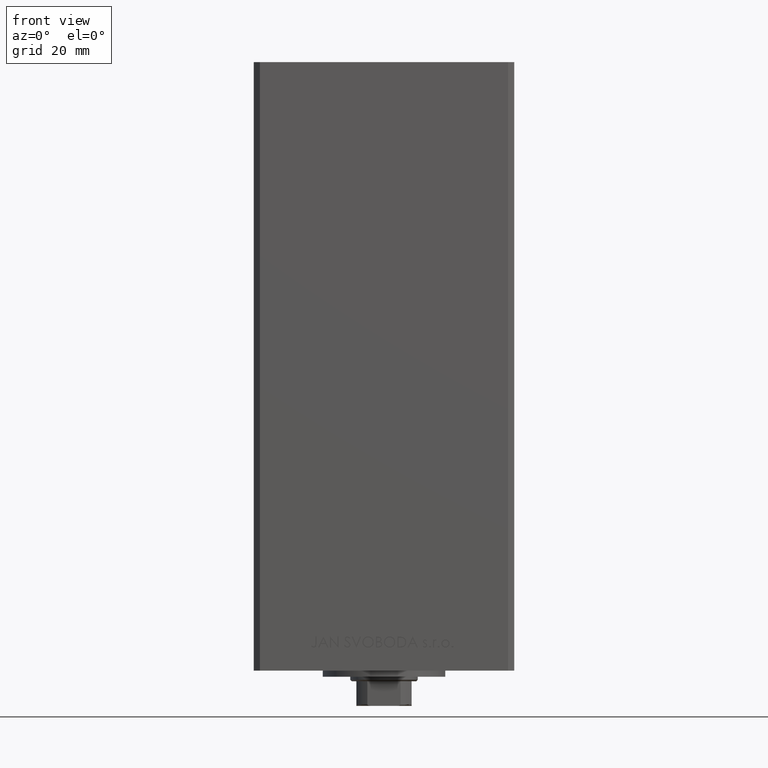
[diagram: clean part render]
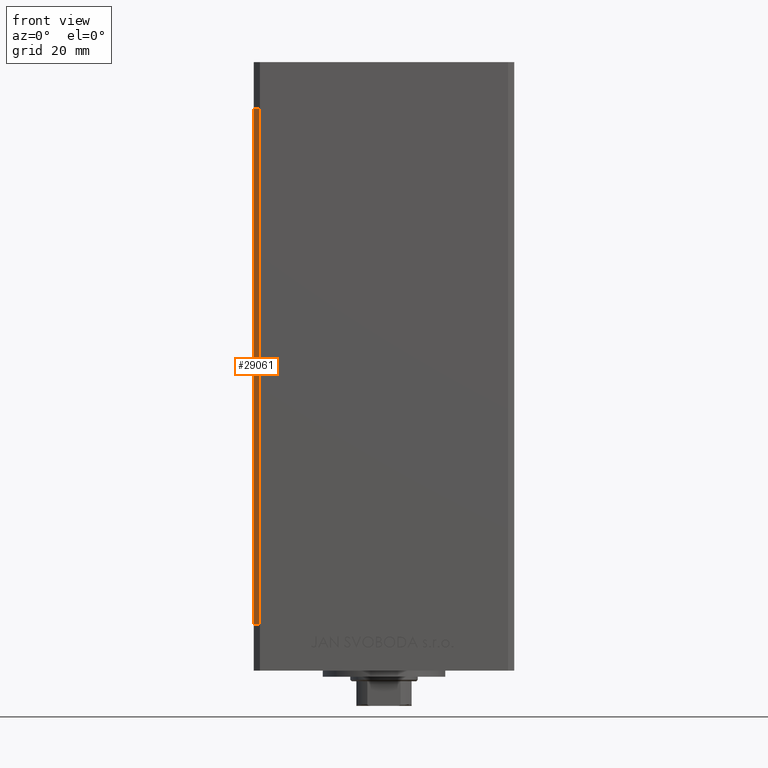
[diagram: same view with one face highlighted and labeled with its STEP entity id]
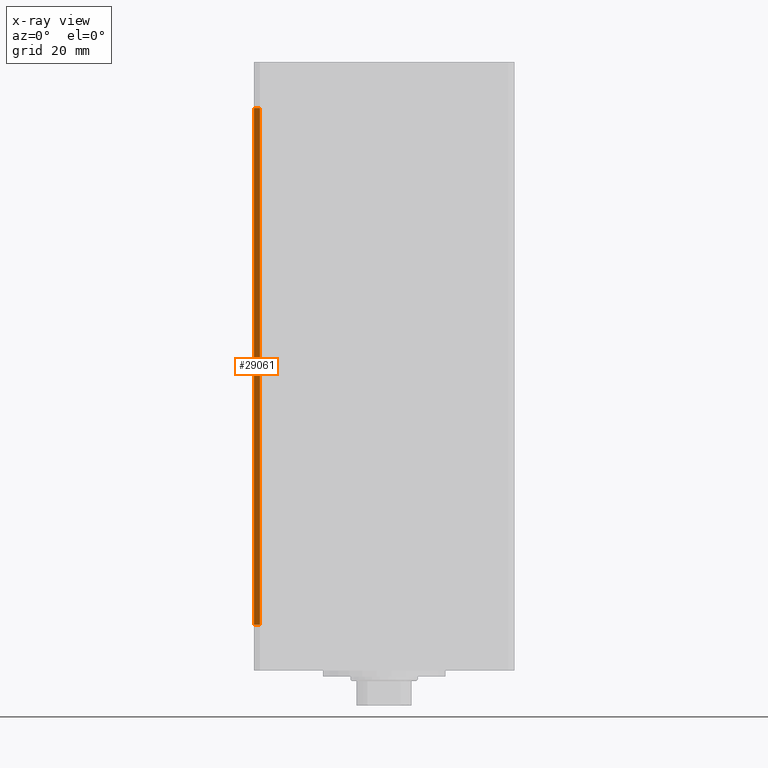
[diagram: x-ray of the same camera — body ghosted, the highlighted face saturated]
A machine part, front view. The second image highlights one B-rep face of the part: STEP entity #29061.
The next image is the same camera in x-ray: the body ghosted, the highlighted face saturated — about 0% of this face is hidden behind the body in this view.
In plain terms, the highlighted planar face has unit normal (0.7071, 0.7071, 0).
Its self-contained STEP definition (entity closure, byte-faithful):
#898 = EDGE_CURVE ( 'NONE', #30725, #7316, #39402, .T. ) ;
#1763 = DIRECTION ( 'NONE',  ( 0.7071067811865474617, -0.7071067811865474617, 0.000000000000000000 ) ) ;
#2797 = FACE_OUTER_BOUND ( 'NONE', #34430, .T. ) ;
#3789 = DIRECTION ( 'NONE',  ( -0.7071067811865474617, 0.7071067811865474617, 0.000000000000000000 ) ) ;
#7316 = VERTEX_POINT ( 'NONE', #42814 ) ;
#8815 = VERTEX_POINT ( 'NONE', #47674 ) ;
#11886 = LINE ( 'NONE', #16325, #29440 ) ;
#14428 = CARTESIAN_POINT ( 'NONE',  ( -42.49999999999998579, -35.50000000000000711, 168.5000000000000000 ) ) ;
#15571 = AXIS2_PLACEMENT_3D ( 'NONE', #18135, #37475, #3789 ) ;
#16325 = CARTESIAN_POINT ( 'NONE',  ( -40.49999999999998579, -37.50000000000000711, 168.5000000000000000 ) ) ;
#18135 = CARTESIAN_POINT ( 'NONE',  ( -42.49999999999998579, -35.50000000000000711, 168.5000000000000000 ) ) ;
#20246 = EDGE_CURVE ( 'NONE', #30776, #8815, #48830, .T. ) ;
#22299 = ORIENTED_EDGE ( 'NONE', *, *, #20246, .T. ) ;
#22669 = VECTOR ( 'NONE', #30036, 1000.000000000000000 ) ;
#24989 = CARTESIAN_POINT ( 'NONE',  ( -42.49999999999998579, -35.50000000000000711, 168.5000000000000000 ) ) ;
#26389 = CARTESIAN_POINT ( 'NONE',  ( -42.49999999999998579, -35.50000000000000711, 0.000000000000000000 ) ) ;
#28491 = ORIENTED_EDGE ( 'NONE', *, *, #46806, .F. ) ;
#29025 = EDGE_CURVE ( 'NONE', #30725, #30776, #37228, .T. ) ;
#29061 = ADVANCED_FACE ( 'NONE', ( #2797 ), #41433, .F. ) ;
#29440 = VECTOR ( 'NONE', #34676, 1000.000000000000000 ) ;
#30036 = DIRECTION ( 'NONE',  ( -0.000000000000000000, -0.000000000000000000, -1.000000000000000000 ) ) ;
#30725 = VERTEX_POINT ( 'NONE', #48424 ) ;
#30776 = VERTEX_POINT ( 'NONE', #26389 ) ;
#30943 = ORIENTED_EDGE ( 'NONE', *, *, #29025, .T. ) ;
#33490 = DIRECTION ( 'NONE',  ( 0.7071067811865474617, -0.7071067811865474617, 0.000000000000000000 ) ) ;
#34430 = EDGE_LOOP ( 'NONE', ( #22299, #28491, #42890, #30943 ) ) ;
#34676 = DIRECTION ( 'NONE',  ( -0.000000000000000000, -0.000000000000000000, -1.000000000000000000 ) ) ;
#34838 = VECTOR ( 'NONE', #33490, 1000.000000000000114 ) ;
#37228 = LINE ( 'NONE', #14428, #22669 ) ;
#37475 = DIRECTION ( 'NONE',  ( 0.7071067811865475727, 0.7071067811865475727, -0.000000000000000000 ) ) ;
#38203 = CARTESIAN_POINT ( 'NONE',  ( -42.49999999999998579, -35.50000000000000711, 0.000000000000000000 ) ) ;
#39402 = LINE ( 'NONE', #24989, #47740 ) ;
#41433 = PLANE ( 'NONE',  #15571 ) ;
#42814 = CARTESIAN_POINT ( 'NONE',  ( -40.49999999999998579, -37.50000000000000711, 168.5000000000000000 ) ) ;
#42890 = ORIENTED_EDGE ( 'NONE', *, *, #898, .F. ) ;
#46806 = EDGE_CURVE ( 'NONE', #7316, #8815, #11886, .T. ) ;
#47674 = CARTESIAN_POINT ( 'NONE',  ( -40.49999999999998579, -37.50000000000000711, 0.000000000000000000 ) ) ;
#47740 = VECTOR ( 'NONE', #1763, 1000.000000000000114 ) ;
#48424 = CARTESIAN_POINT ( 'NONE',  ( -42.49999999999998579, -35.50000000000000711, 168.5000000000000000 ) ) ;
#48830 = LINE ( 'NONE', #38203, #34838 ) ;